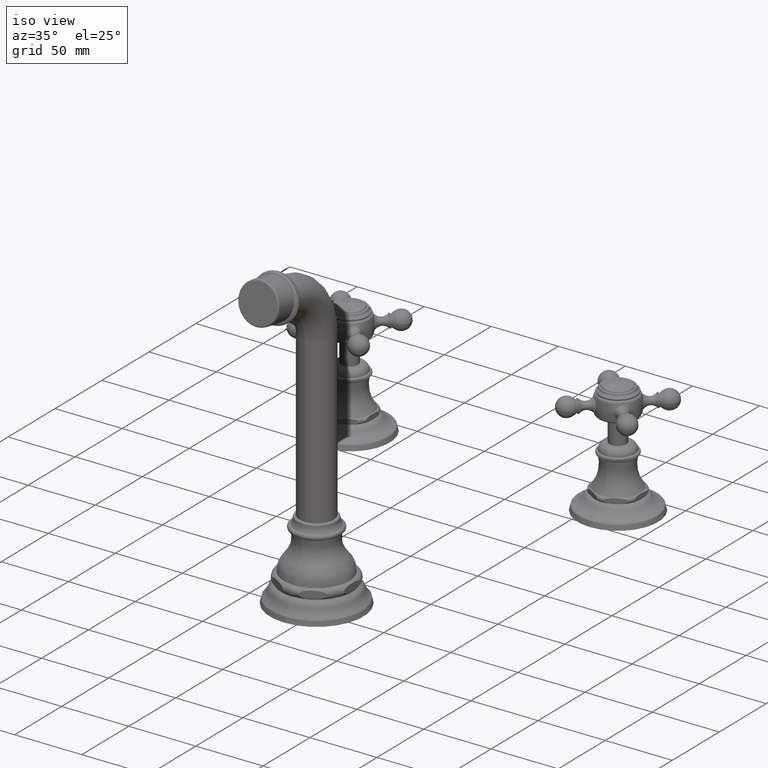
[diagram: clean part render]
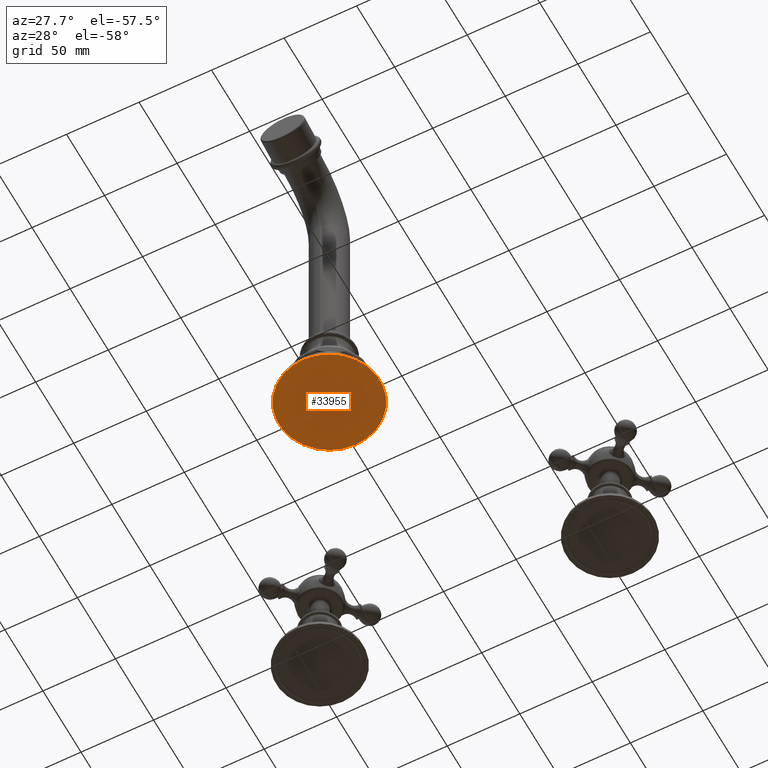
[diagram: tour spotlight — one face highlighted and labeled with its STEP entity id]
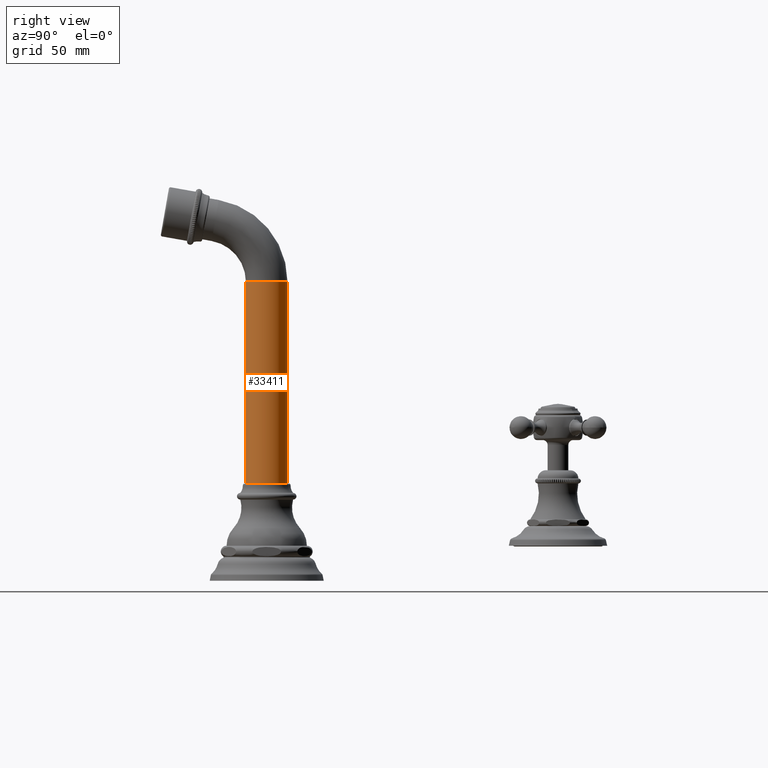
[diagram: tour spotlight — one face highlighted and labeled with its STEP entity id]
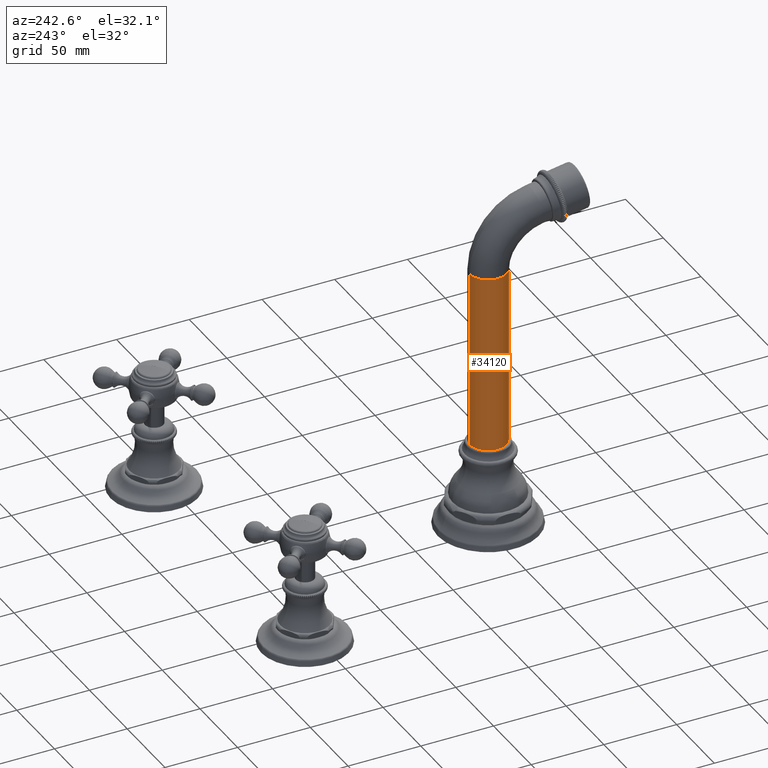
[diagram: tour spotlight — one face highlighted and labeled with its STEP entity id]
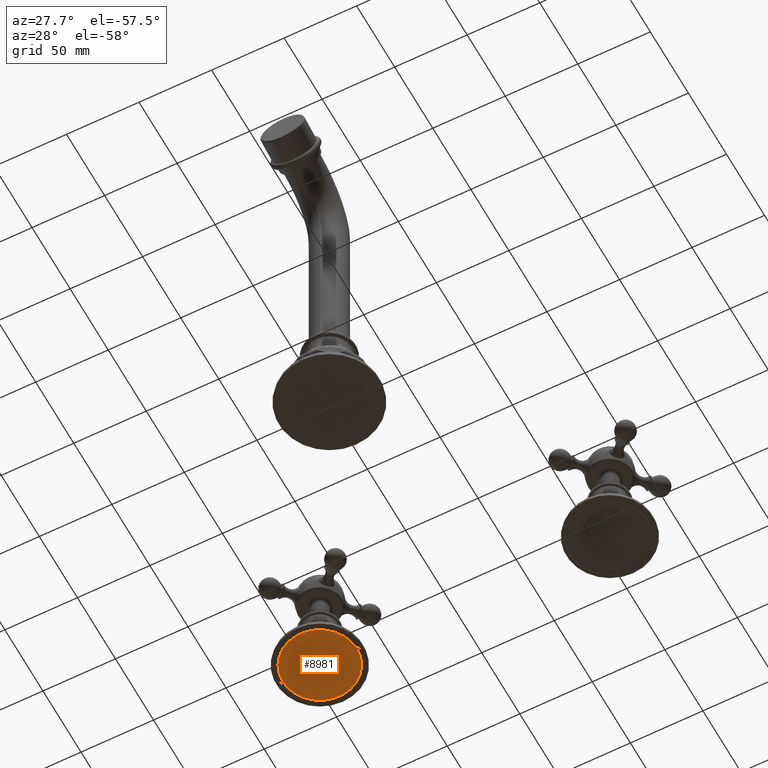
[diagram: tour spotlight — one face highlighted and labeled with its STEP entity id]
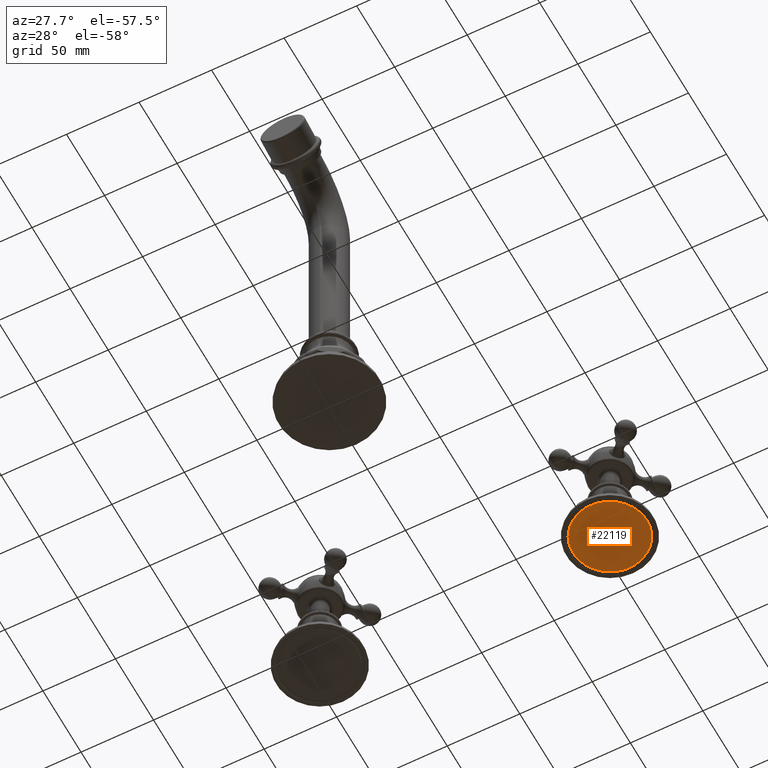
[diagram: tour spotlight — one face highlighted and labeled with its STEP entity id]
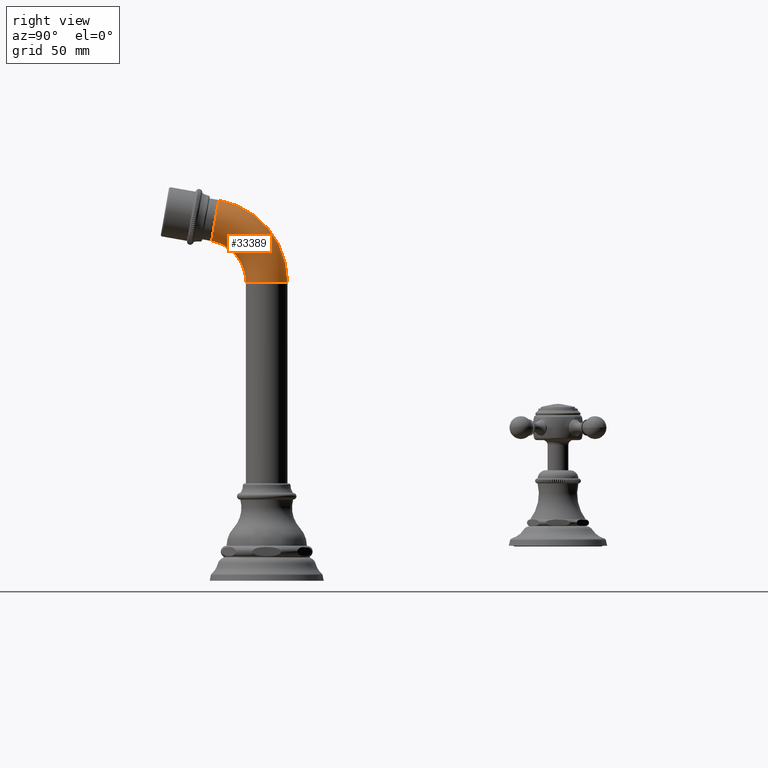
[diagram: tour spotlight — one face highlighted and labeled with its STEP entity id]
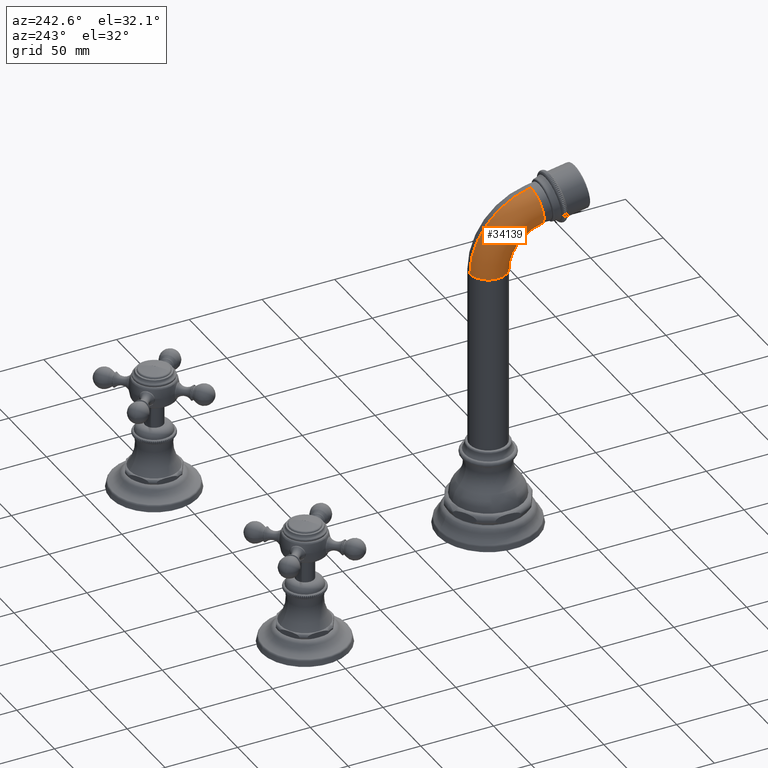
[diagram: tour spotlight — one face highlighted and labeled with its STEP entity id]
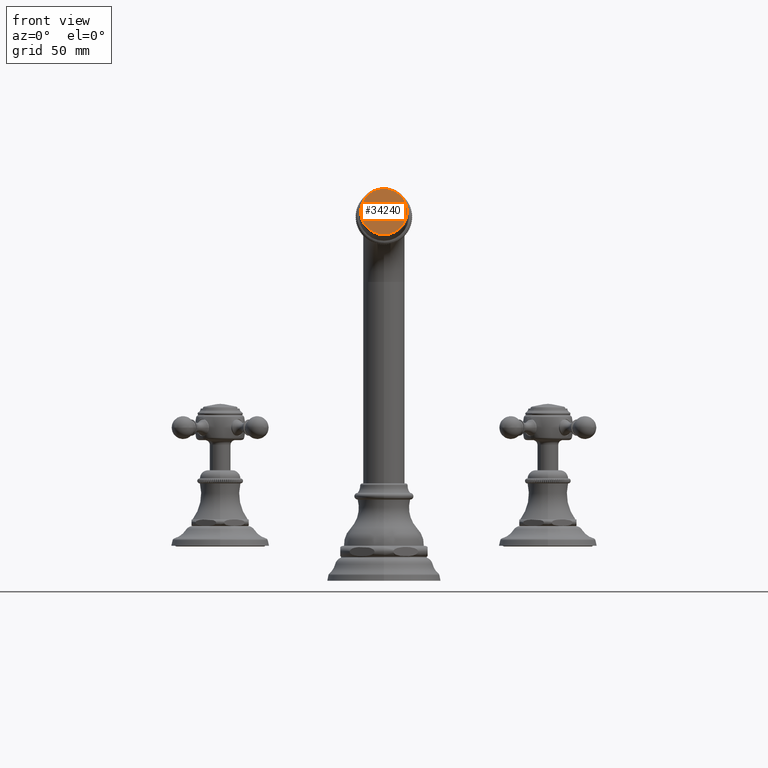
[diagram: tour spotlight — one face highlighted and labeled with its STEP entity id]
A machine part: a face-by-face anatomy tour. The part has 774 B-rep faces; the first image is the clean iso view, then the 8 largest visible faces are spotlighted one at a time (largest first), each with its STEP entity span.

Face 1 — auxiliary view, entity #33955. In plain terms, the highlighted planar face has unit normal (0, 0, -1).
Definition (entity closure, byte-faithful):
#31577=CARTESIAN_POINT('',(0.E0,0.E0,-8.4E-1));
#31578=DIRECTION('',(0.E0,0.E0,-1.E0));
#31579=DIRECTION('',(0.E0,1.E0,0.E0));
#31580=AXIS2_PLACEMENT_3D('',#31577,#31578,#31579);
#31600=CARTESIAN_POINT('',(0.E0,0.E0,-8.4E-1));
#31601=DIRECTION('',(0.E0,0.E0,1.E0));
#31602=DIRECTION('',(0.E0,1.E0,0.E0));
#31603=AXIS2_PLACEMENT_3D('',#31600,#31601,#31602);
#32566=CARTESIAN_POINT('',(0.E0,1.37E0,-8.4E-1));
#32567=CARTESIAN_POINT('',(0.E0,-1.37E0,-8.4E-1));
#32568=VERTEX_POINT('',#32566);
#32569=VERTEX_POINT('',#32567);
#33946=CARTESIAN_POINT('',(0.E0,0.E0,-8.4E-1));
#33947=DIRECTION('',(0.E0,0.E0,-1.E0));
#33948=DIRECTION('',(0.E0,-1.E0,0.E0));
#33949=AXIS2_PLACEMENT_3D('',#33946,#33947,#33948);
#33950=PLANE('',#33949);
#33951=ORIENTED_EDGE('',*,*,#33912,.F.);
#33952=ORIENTED_EDGE('',*,*,#33933,.T.);
#33953=EDGE_LOOP('',(#33951,#33952));
#33954=FACE_OUTER_BOUND('',#33953,.F.);
#31581=CIRCLE('',#31580,1.37E0);
#31604=CIRCLE('',#31603,1.37E0);
#33912=EDGE_CURVE('',#32568,#32569,#31581,.T.);
#33933=EDGE_CURVE('',#32568,#32569,#31604,.T.);
#33955=ADVANCED_FACE('',(#33954),#33950,.T.);

Face 2 — right view, entity #33411. In plain terms, the highlighted cylindrical surface (edge-blend (fillet) strip) has radius 12.7 mm, axis along (0, 0, 1).
Definition (entity closure, byte-faithful):
#30650=CARTESIAN_POINT('',(0.E0,0.E0,6.34E0));
#30651=DIRECTION('',(0.E0,0.E0,1.E0));
#30652=DIRECTION('',(0.E0,-1.E0,0.E0));
#30653=AXIS2_PLACEMENT_3D('',#30650,#30651,#30652);
#30666=DIRECTION('',(0.E0,0.E0,1.E0));
#30667=VECTOR('',#30666,4.84E0);
#30668=CARTESIAN_POINT('',(0.E0,-5.E-1,1.5E0));
#30669=LINE('',#30668,#30667);
#30697=CARTESIAN_POINT('',(0.E0,0.E0,1.5E0));
#30698=DIRECTION('',(0.E0,0.E0,1.E0));
#30699=DIRECTION('',(0.E0,-1.E0,0.E0));
#30700=AXIS2_PLACEMENT_3D('',#30697,#30698,#30699);
#31623=DIRECTION('',(0.E0,0.E0,1.E0));
#31624=VECTOR('',#31623,4.84E0);
#31625=CARTESIAN_POINT('',(0.E0,5.E-1,1.5E0));
#31626=LINE('',#31625,#31624);
#32330=CARTESIAN_POINT('',(0.E0,5.E-1,6.34E0));
#32331=CARTESIAN_POINT('',(0.E0,-5.E-1,6.34E0));
#32332=VERTEX_POINT('',#32330);
#32333=VERTEX_POINT('',#32331);
#32338=CARTESIAN_POINT('',(0.E0,5.E-1,1.5E0));
#32339=CARTESIAN_POINT('',(0.E0,-5.E-1,1.5E0));
#32340=VERTEX_POINT('',#32338);
#32341=VERTEX_POINT('',#32339);
#33397=CARTESIAN_POINT('',(0.E0,0.E0,1.E0));
#33398=DIRECTION('',(0.E0,0.E0,1.E0));
#33399=DIRECTION('',(0.E0,1.E0,0.E0));
#33400=AXIS2_PLACEMENT_3D('',#33397,#33398,#33399);
#33401=CYLINDRICAL_SURFACE('',#33400,5.E-1);
#33403=ORIENTED_EDGE('',*,*,#33402,.F.);
#33405=ORIENTED_EDGE('',*,*,#33404,.T.);
#33406=ORIENTED_EDGE('',*,*,#33380,.T.);
#33408=ORIENTED_EDGE('',*,*,#33407,.F.);
#33409=EDGE_LOOP('',(#33403,#33405,#33406,#33408));
#33410=FACE_OUTER_BOUND('',#33409,.F.);
#30654=CIRCLE('',#30653,5.E-1);
#30701=CIRCLE('',#30700,5.E-1);
#33380=EDGE_CURVE('',#32333,#32332,#30654,.T.);
#33402=EDGE_CURVE('',#32341,#32340,#30701,.T.);
#33404=EDGE_CURVE('',#32341,#32333,#30669,.T.);
#33407=EDGE_CURVE('',#32340,#32332,#31626,.T.);
#33411=ADVANCED_FACE('',(#33410),#33401,.T.);

Face 3 — auxiliary view, entity #34120. In plain terms, the highlighted cylindrical surface (edge-blend (fillet) strip) has radius 12.7 mm, axis along (0, 0, 1).
Definition (entity closure, byte-faithful):
#30666=DIRECTION('',(0.E0,0.E0,1.E0));
#30667=VECTOR('',#30666,4.84E0);
#30668=CARTESIAN_POINT('',(0.E0,-5.E-1,1.5E0));
#30669=LINE('',#30668,#30667);
#30689=CARTESIAN_POINT('',(0.E0,0.E0,1.5E0));
#30690=DIRECTION('',(0.E0,0.E0,1.E0));
#30691=DIRECTION('',(0.E0,1.E0,0.E0));
#30692=AXIS2_PLACEMENT_3D('',#30689,#30690,#30691);
#31623=DIRECTION('',(0.E0,0.E0,1.E0));
#31624=VECTOR('',#31623,4.84E0);
#31625=CARTESIAN_POINT('',(0.E0,5.E-1,1.5E0));
#31626=LINE('',#31625,#31624);
#31630=CARTESIAN_POINT('',(0.E0,0.E0,6.34E0));
#31631=DIRECTION('',(0.E0,0.E0,1.E0));
#31632=DIRECTION('',(0.E0,1.E0,0.E0));
#31633=AXIS2_PLACEMENT_3D('',#31630,#31631,#31632);
#32330=CARTESIAN_POINT('',(0.E0,5.E-1,6.34E0));
#32331=CARTESIAN_POINT('',(0.E0,-5.E-1,6.34E0));
#32332=VERTEX_POINT('',#32330);
#32333=VERTEX_POINT('',#32331);
#32338=CARTESIAN_POINT('',(0.E0,5.E-1,1.5E0));
#32339=CARTESIAN_POINT('',(0.E0,-5.E-1,1.5E0));
#32340=VERTEX_POINT('',#32338);
#32341=VERTEX_POINT('',#32339);
#34108=CARTESIAN_POINT('',(0.E0,0.E0,1.E0));
#34109=DIRECTION('',(0.E0,0.E0,1.E0));
#34110=DIRECTION('',(0.E0,1.E0,0.E0));
#34111=AXIS2_PLACEMENT_3D('',#34108,#34109,#34110);
#34112=CYLINDRICAL_SURFACE('',#34111,5.E-1);
#34113=ORIENTED_EDGE('',*,*,#33430,.F.);
#34114=ORIENTED_EDGE('',*,*,#33407,.T.);
#34116=ORIENTED_EDGE('',*,*,#34115,.T.);
#34117=ORIENTED_EDGE('',*,*,#33404,.F.);
#34118=EDGE_LOOP('',(#34113,#34114,#34116,#34117));
#34119=FACE_OUTER_BOUND('',#34118,.F.);
#30693=CIRCLE('',#30692,5.E-1);
#31634=CIRCLE('',#31633,5.E-1);
#33404=EDGE_CURVE('',#32341,#32333,#30669,.T.);
#33407=EDGE_CURVE('',#32340,#32332,#31626,.T.);
#33430=EDGE_CURVE('',#32340,#32341,#30693,.T.);
#34115=EDGE_CURVE('',#32332,#32333,#31634,.T.);
#34120=ADVANCED_FACE('',(#34119),#34112,.T.);

Face 4 — auxiliary view, entity #8981. In plain terms, the highlighted planar face has unit normal (0, 0, -1).
Definition (entity closure, byte-faithful):
#4836=CARTESIAN_POINT('',(-3.935E0,7.E0,0.E0));
#4837=DIRECTION('',(0.E0,0.E0,1.E0));
#4838=DIRECTION('',(-1.E0,0.E0,0.E0));
#4839=AXIS2_PLACEMENT_3D('',#4836,#4837,#4838);
#4844=CARTESIAN_POINT('',(-3.935E0,7.E0,0.E0));
#4845=DIRECTION('',(0.E0,0.E0,1.E0));
#4846=DIRECTION('',(1.E0,0.E0,0.E0));
#4847=AXIS2_PLACEMENT_3D('',#4844,#4845,#4846);
#6312=CARTESIAN_POINT('',(-4.940884785569E0,7.E0,0.E0));
#6313=CARTESIAN_POINT('',(-2.929115214431E0,7.E0,0.E0));
#6314=VERTEX_POINT('',#6312);
#6315=VERTEX_POINT('',#6313);
#8971=CARTESIAN_POINT('',(-3.935E0,7.E0,0.E0));
#8972=DIRECTION('',(0.E0,0.E0,-1.E0));
#8973=DIRECTION('',(0.E0,-1.E0,0.E0));
#8974=AXIS2_PLACEMENT_3D('',#8971,#8972,#8973);
#8975=PLANE('',#8974);
#8976=ORIENTED_EDGE('',*,*,#8954,.T.);
#8978=ORIENTED_EDGE('',*,*,#8977,.T.);
#8979=EDGE_LOOP('',(#8976,#8978));
#8980=FACE_OUTER_BOUND('',#8979,.F.);
#4840=CIRCLE('',#4839,1.005884785569E0);
#4848=CIRCLE('',#4847,1.005884785569E0);
#8954=EDGE_CURVE('',#6314,#6315,#4840,.T.);
#8977=EDGE_CURVE('',#6315,#6314,#4848,.T.);
#8981=ADVANCED_FACE('',(#8980),#8975,.T.);

Face 5 — auxiliary view, entity #22119. In plain terms, the highlighted planar face has unit normal (0, 0, -1).
Definition (entity closure, byte-faithful):
#18199=CARTESIAN_POINT('',(3.94E0,7.E0,0.E0));
#18200=DIRECTION('',(0.E0,0.E0,1.E0));
#18201=DIRECTION('',(-1.E0,0.E0,0.E0));
#18202=AXIS2_PLACEMENT_3D('',#18199,#18200,#18201);
#18207=CARTESIAN_POINT('',(3.94E0,7.E0,0.E0));
#18208=DIRECTION('',(0.E0,0.E0,1.E0));
#18209=DIRECTION('',(1.E0,0.E0,0.E0));
#18210=AXIS2_PLACEMENT_3D('',#18207,#18208,#18209);
#19675=CARTESIAN_POINT('',(2.934115214431E0,7.E0,0.E0));
#19676=CARTESIAN_POINT('',(4.945884785569E0,7.E0,0.E0));
#19677=VERTEX_POINT('',#19675);
#19678=VERTEX_POINT('',#19676);
#22109=CARTESIAN_POINT('',(3.94E0,7.E0,0.E0));
#22110=DIRECTION('',(0.E0,0.E0,-1.E0));
#22111=DIRECTION('',(0.E0,-1.E0,0.E0));
#22112=AXIS2_PLACEMENT_3D('',#22109,#22110,#22111);
#22113=PLANE('',#22112);
#22114=ORIENTED_EDGE('',*,*,#22087,.T.);
#22116=ORIENTED_EDGE('',*,*,#22115,.T.);
#22117=EDGE_LOOP('',(#22114,#22116));
#22118=FACE_OUTER_BOUND('',#22117,.F.);
#18203=CIRCLE('',#18202,1.005884785569E0);
#18211=CIRCLE('',#18210,1.005884785569E0);
#22087=EDGE_CURVE('',#19677,#19678,#18203,.T.);
#22115=EDGE_CURVE('',#19678,#19677,#18211,.T.);
#22119=ADVANCED_FACE('',(#22118),#22113,.T.);

Face 6 — right view, entity #33389. In plain terms, the highlighted toroidal blend (fillet) surface has major radius 38.1 mm and minor (blend) radius 12.7 mm.
Definition (entity closure, byte-faithful):
#30635=CARTESIAN_POINT('',(0.E0,-1.239527733500E0,7.817211629518E0));
#30636=DIRECTION('',(0.E0,-9.848077530122E-1,1.736481776669E-1));
#30637=DIRECTION('',(0.E0,-1.736481776669E-1,-9.848077530122E-1));
#30638=AXIS2_PLACEMENT_3D('',#30635,#30636,#30637);
#30650=CARTESIAN_POINT('',(0.E0,0.E0,6.34E0));
#30651=DIRECTION('',(0.E0,0.E0,1.E0));
#30652=DIRECTION('',(0.E0,-1.E0,0.E0));
#30653=AXIS2_PLACEMENT_3D('',#30650,#30651,#30652);
#30658=CARTESIAN_POINT('',(0.E0,-1.5E0,6.34E0));
#30659=DIRECTION('',(1.E0,0.E0,0.E0));
#30660=DIRECTION('',(0.E0,1.E0,0.E0));
#30661=AXIS2_PLACEMENT_3D('',#30658,#30659,#30660);
#31638=CARTESIAN_POINT('',(0.E0,-1.5E0,6.34E0));
#31639=DIRECTION('',(1.E0,0.E0,0.E0));
#31640=DIRECTION('',(0.E0,1.E0,0.E0));
#31641=AXIS2_PLACEMENT_3D('',#31638,#31639,#31640);
#32330=CARTESIAN_POINT('',(0.E0,5.E-1,6.34E0));
#32331=CARTESIAN_POINT('',(0.E0,-5.E-1,6.34E0));
#32332=VERTEX_POINT('',#32330);
#32333=VERTEX_POINT('',#32331);
#32334=CARTESIAN_POINT('',(0.E0,-1.152703644666E0,8.309615506024E0));
#32335=CARTESIAN_POINT('',(0.E0,-1.326351822333E0,7.324807753012E0));
#32336=VERTEX_POINT('',#32334);
#32337=VERTEX_POINT('',#32335);
#33375=CARTESIAN_POINT('',(0.E0,-1.5E0,6.34E0));
#33376=DIRECTION('',(1.E0,0.E0,0.E0));
#33377=DIRECTION('',(0.E0,-1.E0,0.E0));
#33378=AXIS2_PLACEMENT_3D('',#33375,#33376,#33377);
#33379=TOROIDAL_SURFACE('',#33378,1.5E0,5.E-1);
#33381=ORIENTED_EDGE('',*,*,#33380,.F.);
#33383=ORIENTED_EDGE('',*,*,#33382,.T.);
#33384=ORIENTED_EDGE('',*,*,#33362,.T.);
#33386=ORIENTED_EDGE('',*,*,#33385,.F.);
#33387=EDGE_LOOP('',(#33381,#33383,#33384,#33386));
#33388=FACE_OUTER_BOUND('',#33387,.F.);
#30639=CIRCLE('',#30638,5.E-1);
#30654=CIRCLE('',#30653,5.E-1);
#30662=CIRCLE('',#30661,1.E0);
#31642=CIRCLE('',#31641,2.E0);
#33362=EDGE_CURVE('',#32337,#32336,#30639,.T.);
#33380=EDGE_CURVE('',#32333,#32332,#30654,.T.);
#33382=EDGE_CURVE('',#32333,#32337,#30662,.T.);
#33385=EDGE_CURVE('',#32332,#32336,#31642,.T.);
#33389=ADVANCED_FACE('',(#33388),#33379,.T.);

Face 7 — auxiliary view, entity #34139. In plain terms, the highlighted toroidal blend (fillet) surface has major radius 38.1 mm and minor (blend) radius 12.7 mm.
Definition (entity closure, byte-faithful):
#30612=CARTESIAN_POINT('',(0.E0,-1.239527733500E0,7.817211629518E0));
#30613=DIRECTION('',(0.E0,-9.848077530122E-1,1.736481776669E-1));
#30614=DIRECTION('',(0.E0,1.736481776669E-1,9.848077530122E-1));
#30615=AXIS2_PLACEMENT_3D('',#30612,#30613,#30614);
#30658=CARTESIAN_POINT('',(0.E0,-1.5E0,6.34E0));
#30659=DIRECTION('',(1.E0,0.E0,0.E0));
#30660=DIRECTION('',(0.E0,1.E0,0.E0));
#30661=AXIS2_PLACEMENT_3D('',#30658,#30659,#30660);
#31630=CARTESIAN_POINT('',(0.E0,0.E0,6.34E0));
#31631=DIRECTION('',(0.E0,0.E0,1.E0));
#31632=DIRECTION('',(0.E0,1.E0,0.E0));
#31633=AXIS2_PLACEMENT_3D('',#31630,#31631,#31632);
#31638=CARTESIAN_POINT('',(0.E0,-1.5E0,6.34E0));
#31639=DIRECTION('',(1.E0,0.E0,0.E0));
#31640=DIRECTION('',(0.E0,1.E0,0.E0));
#31641=AXIS2_PLACEMENT_3D('',#31638,#31639,#31640);
#32330=CARTESIAN_POINT('',(0.E0,5.E-1,6.34E0));
#32331=CARTESIAN_POINT('',(0.E0,-5.E-1,6.34E0));
#32332=VERTEX_POINT('',#32330);
#32333=VERTEX_POINT('',#32331);
#32334=CARTESIAN_POINT('',(0.E0,-1.152703644666E0,8.309615506024E0));
#32335=CARTESIAN_POINT('',(0.E0,-1.326351822333E0,7.324807753012E0));
#32336=VERTEX_POINT('',#32334);
#32337=VERTEX_POINT('',#32335);
#34128=CARTESIAN_POINT('',(0.E0,-1.5E0,6.34E0));
#34129=DIRECTION('',(1.E0,0.E0,0.E0));
#34130=DIRECTION('',(0.E0,-1.E0,0.E0));
#34131=AXIS2_PLACEMENT_3D('',#34128,#34129,#34130);
#34132=TOROIDAL_SURFACE('',#34131,1.5E0,5.E-1);
#34133=ORIENTED_EDGE('',*,*,#34115,.F.);
#34134=ORIENTED_EDGE('',*,*,#33385,.T.);
#34135=ORIENTED_EDGE('',*,*,#33341,.T.);
#34136=ORIENTED_EDGE('',*,*,#33382,.F.);
#34137=EDGE_LOOP('',(#34133,#34134,#34135,#34136));
#34138=FACE_OUTER_BOUND('',#34137,.F.);
#30616=CIRCLE('',#30615,5.E-1);
#30662=CIRCLE('',#30661,1.E0);
#31634=CIRCLE('',#31633,5.E-1);
#31642=CIRCLE('',#31641,2.E0);
#33341=EDGE_CURVE('',#32336,#32337,#30616,.T.);
#33382=EDGE_CURVE('',#32333,#32337,#30662,.T.);
#33385=EDGE_CURVE('',#32332,#32336,#31642,.T.);
#34115=EDGE_CURVE('',#32332,#32333,#31634,.T.);
#34139=ADVANCED_FACE('',(#34138),#34132,.T.);

Face 8 — front view, entity #34240. In plain terms, the highlighted planar face has unit normal (0, -0.9848, 0.1736).
Definition (entity closure, byte-faithful):
#31692=CARTESIAN_POINT('',(0.E0,-2.447403876506E0,8.030192782884E0));
#31693=DIRECTION('',(0.E0,9.848077530122E-1,-1.736481776669E-1));
#31694=DIRECTION('',(0.E0,-1.736481776669E-1,-9.848077530122E-1));
#31695=AXIS2_PLACEMENT_3D('',#31692,#31693,#31694);
#31700=CARTESIAN_POINT('',(0.E0,-2.447403876506E0,8.030192782884E0));
#31701=DIRECTION('',(0.E0,9.848077530122E-1,-1.736481776669E-1));
#31702=DIRECTION('',(0.E0,1.736481776669E-1,9.848077530122E-1));
#31703=AXIS2_PLACEMENT_3D('',#31700,#31701,#31702);
#32558=CARTESIAN_POINT('',(0.E0,-2.544646856E0,7.478700441198E0));
#32559=CARTESIAN_POINT('',(0.E0,-2.350160897013E0,8.581685124571E0));
#32560=VERTEX_POINT('',#32558);
#32561=VERTEX_POINT('',#32559);
#34231=CARTESIAN_POINT('',(0.E0,-2.447403876506E0,8.030192782884E0));
#34232=DIRECTION('',(0.E0,-9.848077530122E-1,1.736481776669E-1));
#34233=DIRECTION('',(0.E0,1.736481776669E-1,9.848077530122E-1));
#34234=AXIS2_PLACEMENT_3D('',#34231,#34232,#34233);
#34235=PLANE('',#34234);
#34236=ORIENTED_EDGE('',*,*,#34177,.T.);
#34237=ORIENTED_EDGE('',*,*,#34199,.T.);
#34238=EDGE_LOOP('',(#34236,#34237));
#34239=FACE_OUTER_BOUND('',#34238,.F.);
#31696=CIRCLE('',#31695,5.6E-1);
#31704=CIRCLE('',#31703,5.6E-1);
#34177=EDGE_CURVE('',#32560,#32561,#31696,.T.);
#34199=EDGE_CURVE('',#32561,#32560,#31704,.T.);
#34240=ADVANCED_FACE('',(#34239),#34235,.T.);